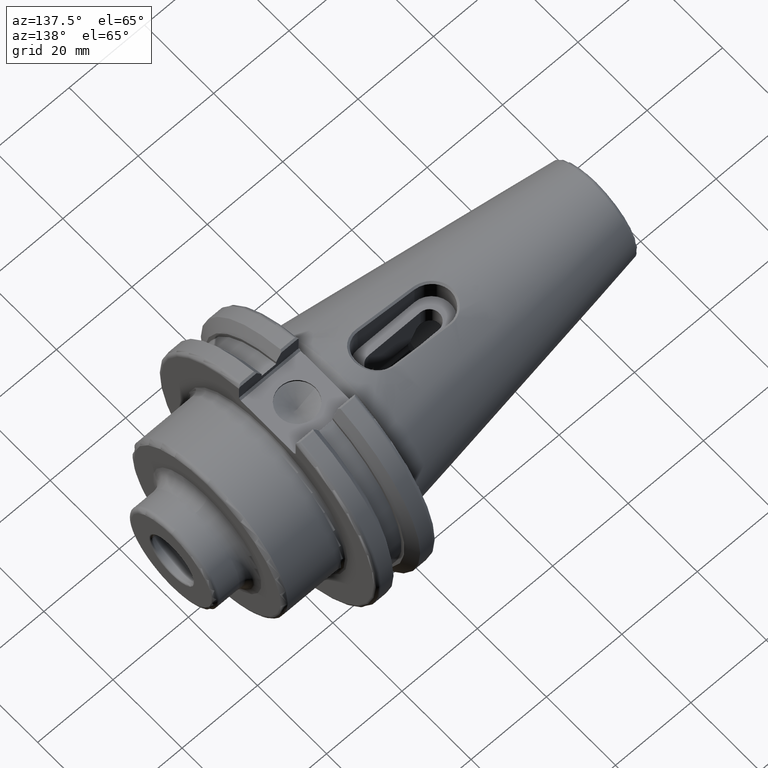
[diagram: clean part render]
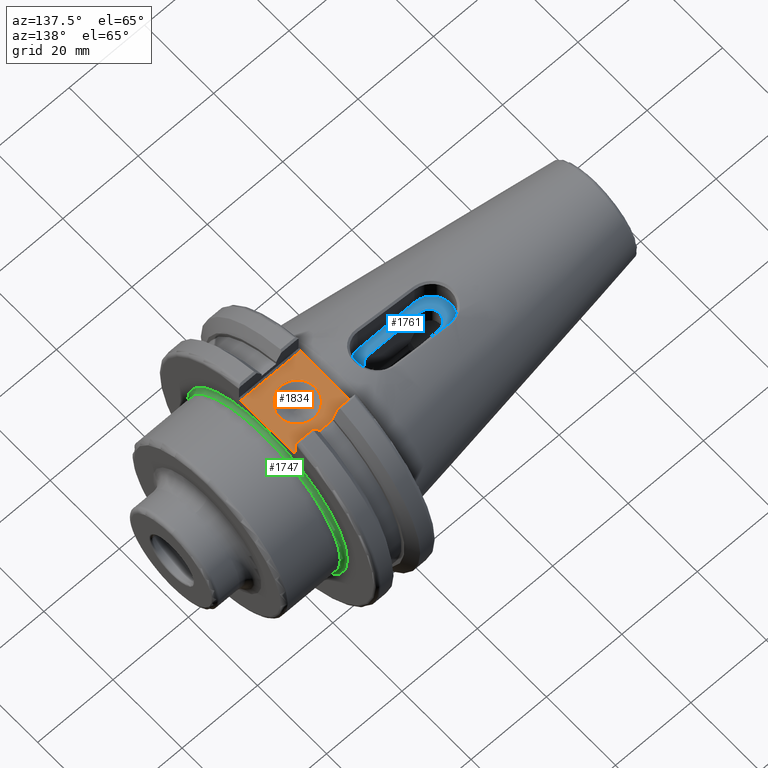
[diagram: same view with three faces highlighted in distinct colors, each labeled with its STEP entity id]
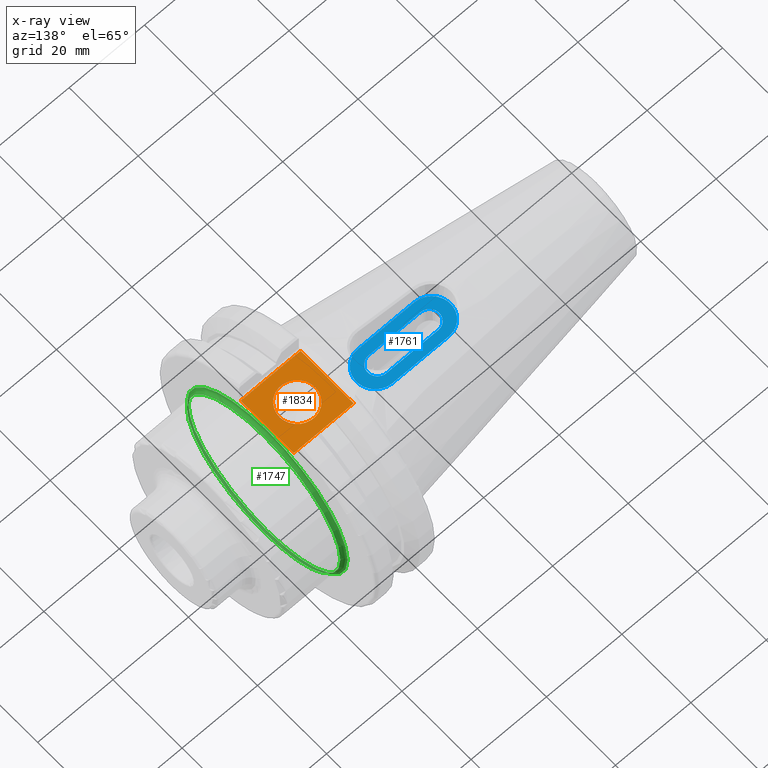
[diagram: x-ray of the same camera — body ghosted, the three highlighted faces saturated]
A machine part, auxiliary view with three faces highlighted in distinct colors.
The next image is the same camera in x-ray (body ghosted, the three faces saturated) — at least one of them is partly hidden behind the body in this view.
Their STEP definitions:

[orange] entity #1834 — the highlighted planar face has unit normal (0, 0, 1).
#193=LINE('',#3467,#318);
#214=LINE('',#3567,#339);
#237=LINE('',#3745,#362);
#239=LINE('',#3748,#364);
#318=VECTOR('',#2259,10.);
#339=VECTOR('',#2298,10.);
#362=VECTOR('',#2367,10.);
#364=VECTOR('',#2371,10.);
#398=FACE_BOUND('',#646,.T.);
#438=PLANE('',#2014);
#536=FACE_OUTER_BOUND('',#645,.T.);
#645=EDGE_LOOP('',(#1708,#1709,#1710,#1711));
#646=EDGE_LOOP('',(#1712));
#716=CIRCLE('',#1997,4.7625);
#828=VERTEX_POINT('',#3464);
#829=VERTEX_POINT('',#3466);
#855=VERTEX_POINT('',#3564);
#856=VERTEX_POINT('',#3566);
#902=VERTEX_POINT('',#3805);
#1059=EDGE_CURVE('',#828,#829,#193,.T.);
#1092=EDGE_CURVE('',#855,#856,#214,.T.);
#1141=EDGE_CURVE('',#856,#828,#237,.T.);
#1143=EDGE_CURVE('',#829,#855,#239,.T.);
#1165=EDGE_CURVE('',#902,#902,#716,.T.);
#1708=ORIENTED_EDGE('',*,*,#1141,.F.);
#1709=ORIENTED_EDGE('',*,*,#1092,.F.);
#1710=ORIENTED_EDGE('',*,*,#1143,.F.);
#1711=ORIENTED_EDGE('',*,*,#1059,.F.);
#1712=ORIENTED_EDGE('',*,*,#1165,.T.);
#1834=ADVANCED_FACE('',(#536,#398),#438,.T.);
#1997=AXIS2_PLACEMENT_3D('',#3806,#2414,#2415);
#2014=AXIS2_PLACEMENT_3D('',#3824,#2449,#2450);
#2259=DIRECTION('',(0.,1.,0.));
#2298=DIRECTION('',(0.,-1.,0.));
#2367=DIRECTION('',(-1.,1.31581988103722E-16,0.));
#2371=DIRECTION('',(1.,0.,0.));
#2414=DIRECTION('center_axis',(0.,0.,-1.));
#2415=DIRECTION('ref_axis',(1.,0.,0.));
#2449=DIRECTION('center_axis',(0.,0.,1.));
#2450=DIRECTION('ref_axis',(1.,0.,0.));
#3464=CARTESIAN_POINT('',(3.175,-7.68999999999999,25.));
#3466=CARTESIAN_POINT('',(3.175,7.69,25.));
#3467=CARTESIAN_POINT('',(3.175,15.875,25.));
#3564=CARTESIAN_POINT('',(19.05,7.69,25.));
#3566=CARTESIAN_POINT('',(19.05,-7.69,25.));
#3567=CARTESIAN_POINT('',(19.05,0.,25.));
#3745=CARTESIAN_POINT('',(9.44125,-7.69,25.));
#3748=CARTESIAN_POINT('',(17.87875,7.69,25.));
#3805=CARTESIAN_POINT('',(6.3645,-5.83238038093927E-16,25.));
#3806=CARTESIAN_POINT('Origin',(11.127,0.,25.));
#3824=CARTESIAN_POINT('Origin',(15.7075,0.,25.));

[blue] entity #1761 — the highlighted planar face has unit normal (0, -0, -1).
#141=LINE('',#2889,#266);
#145=LINE('',#2898,#270);
#147=LINE('',#2973,#272);
#148=LINE('',#2977,#273);
#266=VECTOR('',#2099,10.);
#270=VECTOR('',#2109,10.);
#272=VECTOR('',#2125,10.);
#273=VECTOR('',#2128,10.);
#394=FACE_BOUND('',#569,.T.);
#404=PLANE('',#1903);
#463=FACE_OUTER_BOUND('',#568,.T.);
#568=EDGE_LOOP('',(#1300,#1301,#1302,#1303));
#569=EDGE_LOOP('',(#1304,#1305,#1306,#1307));
#673=CIRCLE('',#1895,5.);
#677=CIRCLE('',#1902,5.);
#678=CIRCLE('',#1904,2.6);
#679=CIRCLE('',#1905,2.6);
#760=VERTEX_POINT('',#2886);
#761=VERTEX_POINT('',#2888);
#762=VERTEX_POINT('',#2892);
#763=VERTEX_POINT('',#2896);
#775=VERTEX_POINT('',#2971);
#776=VERTEX_POINT('',#2972);
#777=VERTEX_POINT('',#2974);
#778=VERTEX_POINT('',#2976);
#956=EDGE_CURVE('',#760,#761,#141,.T.);
#959=EDGE_CURVE('',#762,#760,#673,.T.);
#961=EDGE_CURVE('',#763,#762,#145,.T.);
#974=EDGE_CURVE('',#761,#763,#677,.T.);
#975=EDGE_CURVE('',#775,#776,#147,.T.);
#976=EDGE_CURVE('',#777,#775,#678,.T.);
#977=EDGE_CURVE('',#778,#777,#148,.T.);
#978=EDGE_CURVE('',#776,#778,#679,.T.);
#1300=ORIENTED_EDGE('',*,*,#974,.F.);
#1301=ORIENTED_EDGE('',*,*,#956,.F.);
#1302=ORIENTED_EDGE('',*,*,#959,.F.);
#1303=ORIENTED_EDGE('',*,*,#961,.F.);
#1304=ORIENTED_EDGE('',*,*,#975,.F.);
#1305=ORIENTED_EDGE('',*,*,#976,.F.);
#1306=ORIENTED_EDGE('',*,*,#977,.F.);
#1307=ORIENTED_EDGE('',*,*,#978,.F.);
#1761=ADVANCED_FACE('',(#463,#394),#404,.F.);
#1895=AXIS2_PLACEMENT_3D('',#2894,#2104,#2105);
#1902=AXIS2_PLACEMENT_3D('',#2969,#2121,#2122);
#1903=AXIS2_PLACEMENT_3D('',#2970,#2123,#2124);
#1904=AXIS2_PLACEMENT_3D('',#2975,#2126,#2127);
#1905=AXIS2_PLACEMENT_3D('',#2978,#2129,#2130);
#2099=DIRECTION('',(1.,-2.96059473233375E-16,3.62568286252504E-32));
#2104=DIRECTION('center_axis',(0.,-1.22464679914735E-16,-1.));
#2105=DIRECTION('ref_axis',(0.,-1.,1.22464679914735E-16));
#2109=DIRECTION('',(-1.,-4.44089209850063E-16,5.43852429378756E-32));
#2121=DIRECTION('center_axis',(0.,-1.22464679914735E-16,-1.));
#2122=DIRECTION('ref_axis',(0.,1.,-1.22464679914735E-16));
#2123=DIRECTION('center_axis',(0.,-1.22464679914735E-16,-1.));
#2124=DIRECTION('ref_axis',(1.,0.,0.));
#2125=DIRECTION('',(-1.,8.04509438134171E-17,-9.85239908294848E-33));
#2126=DIRECTION('center_axis',(0.,1.22464679914735E-16,1.));
#2127=DIRECTION('ref_axis',(8.54017711250121E-16,-1.,0.));
#2128=DIRECTION('',(1.,2.41352831440251E-16,-2.95571972488454E-32));
#2129=DIRECTION('center_axis',(0.,1.22464679914735E-16,1.));
#2130=DIRECTION('ref_axis',(0.,1.,0.));
#2886=CARTESIAN_POINT('',(-24.55,5.00000000000001,11.6344));
#2888=CARTESIAN_POINT('',(-9.55,5.,11.6344));
#2889=CARTESIAN_POINT('',(-24.55,5.00000000000001,11.6344));
#2892=CARTESIAN_POINT('',(-24.55,-5.,11.6344));
#2894=CARTESIAN_POINT('Origin',(-24.55,3.87619945159417E-15,11.6344));
#2896=CARTESIAN_POINT('',(-9.55,-5.,11.6344));
#2898=CARTESIAN_POINT('',(-9.55,-5.,11.6344));
#2969=CARTESIAN_POINT('Origin',(-9.55,2.59434076518572E-15,11.6344));
#2970=CARTESIAN_POINT('Origin',(-17.05,1.424803072E-15,11.6344));
#2971=CARTESIAN_POINT('',(-10.15,2.6,11.6344));
#2972=CARTESIAN_POINT('',(-23.95,2.6,11.6344));
#2973=CARTESIAN_POINT('',(-13.6,2.6,11.6344));
#2974=CARTESIAN_POINT('',(-10.15,-2.6,11.6344));
#2975=CARTESIAN_POINT('Origin',(-10.15,-1.37580997764397E-15,11.6344));
#2976=CARTESIAN_POINT('',(-23.95,-2.6,11.6344));
#2977=CARTESIAN_POINT('',(-20.5,-2.6,11.6344));
#2978=CARTESIAN_POINT('Origin',(-23.95,-1.98027758172778E-15,11.6344));

[green] entity #1747 — the highlighted toroidal blend (fillet) surface has major radius 23.225 mm and minor (blend) radius 1 mm.
#51=B_SPLINE_CURVE_WITH_KNOTS('',3,(#2517,#2518,#2519,#2520,#2521,#2522),
 .UNSPECIFIED.,.F.,.F.,(4,2,4),(1.71265323869135,2.05590760475557,2.21500771015416),
 .UNSPECIFIED.);
#52=B_SPLINE_CURVE_WITH_KNOTS('',3,(#2525,#2526,#2527,#2528,#2529,#2530),
 .UNSPECIFIED.,.F.,.F.,(4,2,4),(1.21029876722854,1.36939887262713,1.71265323869135),
 .UNSPECIFIED.);
#449=FACE_OUTER_BOUND('',#552,.T.);
#552=EDGE_LOOP('',(#1220,#1221,#1222,#1223,#1224,#1225,#1226));
#669=CIRCLE('',#1888,22.225);
#670=CIRCLE('',#1889,22.225);
#671=CIRCLE('',#1891,1.);
#672=CIRCLE('',#1892,23.225);
#739=VERTEX_POINT('',#2508);
#740=VERTEX_POINT('',#2510);
#741=VERTEX_POINT('',#2514);
#742=VERTEX_POINT('',#2516);
#743=VERTEX_POINT('',#2523);
#925=EDGE_CURVE('',#740,#739,#669,.T.);
#926=EDGE_CURVE('',#739,#740,#670,.T.);
#927=EDGE_CURVE('',#740,#741,#671,.T.);
#928=EDGE_CURVE('',#742,#741,#51,.F.);
#929=EDGE_CURVE('',#742,#743,#672,.T.);
#930=EDGE_CURVE('',#741,#743,#52,.F.);
#1220=ORIENTED_EDGE('',*,*,#926,.T.);
#1221=ORIENTED_EDGE('',*,*,#927,.T.);
#1222=ORIENTED_EDGE('',*,*,#928,.F.);
#1223=ORIENTED_EDGE('',*,*,#929,.T.);
#1224=ORIENTED_EDGE('',*,*,#930,.F.);
#1225=ORIENTED_EDGE('',*,*,#927,.F.);
#1226=ORIENTED_EDGE('',*,*,#925,.T.);
#1731=TOROIDAL_SURFACE('',#1890,23.225,1.);
#1747=ADVANCED_FACE('',(#449),#1731,.F.);
#1888=AXIS2_PLACEMENT_3D('',#2511,#2078,#2079);
#1889=AXIS2_PLACEMENT_3D('',#2512,#2080,#2081);
#1890=AXIS2_PLACEMENT_3D('',#2513,#2082,#2083);
#1891=AXIS2_PLACEMENT_3D('',#2515,#2084,#2085);
#1892=AXIS2_PLACEMENT_3D('',#2524,#2086,#2087);
#2078=DIRECTION('center_axis',(-1.,0.,0.));
#2079=DIRECTION('ref_axis',(0.,-1.,-1.22464679914735E-16));
#2080=DIRECTION('center_axis',(-1.,0.,0.));
#2081=DIRECTION('ref_axis',(0.,-1.,-1.22464679914735E-16));
#2082=DIRECTION('center_axis',(-1.,0.,0.));
#2083=DIRECTION('ref_axis',(0.,0.,1.));
#2084=DIRECTION('center_axis',(0.,-1.,1.22464679914735E-16));
#2085=DIRECTION('ref_axis',(0.,-1.22464679914735E-16,-1.));
#2086=DIRECTION('center_axis',(1.,0.,0.));
#2087=DIRECTION('ref_axis',(0.,-1.,-1.22464679914735E-16));
#2508=CARTESIAN_POINT('',(20.05,-22.225,-2.72177751110499E-15));
#2510=CARTESIAN_POINT('',(20.05,-2.72177751110499E-15,-22.225));
#2511=CARTESIAN_POINT('Origin',(20.05,0.,0.));
#2512=CARTESIAN_POINT('Origin',(20.05,0.,0.));
#2513=CARTESIAN_POINT('Origin',(20.05,0.,0.));
#2514=CARTESIAN_POINT('',(19.2693752502002,-1.31446194399744E-15,-22.6));
#2515=CARTESIAN_POINT('Origin',(20.05,-2.84424219101973E-15,-23.225));
#2516=CARTESIAN_POINT('',(19.05,5.35169365715191,-22.6));
#2517=CARTESIAN_POINT('Ctrl Pts',(19.2693752502002,1.38777878078145E-16,
-22.6));
#2518=CARTESIAN_POINT('Ctrl Pts',(19.2693752502002,1.14418122021406,-22.6));
#2519=CARTESIAN_POINT('Ctrl Pts',(19.1704705030536,2.51363176994057,-22.6));
#2520=CARTESIAN_POINT('Ctrl Pts',(19.076756191356,4.18552225512046,-22.6));
#2521=CARTESIAN_POINT('Ctrl Pts',(19.05,4.82135997248993,-22.6));
#2522=CARTESIAN_POINT('Ctrl Pts',(19.05,5.35169365715191,-22.6));
#2523=CARTESIAN_POINT('',(19.05,-5.35169365715191,-22.6));
#2524=CARTESIAN_POINT('Origin',(19.05,0.,0.));
#2525=CARTESIAN_POINT('Ctrl Pts',(19.05,-5.35169365715191,-22.6));
#2526=CARTESIAN_POINT('Ctrl Pts',(19.05,-4.82135997248993,-22.6));
#2527=CARTESIAN_POINT('Ctrl Pts',(19.076756191356,-4.18552225512046,-22.6));
#2528=CARTESIAN_POINT('Ctrl Pts',(19.1704705030536,-2.51363176994057,-22.6));
#2529=CARTESIAN_POINT('Ctrl Pts',(19.2693752502002,-1.14418122021406,-22.6));
#2530=CARTESIAN_POINT('Ctrl Pts',(19.2693752502002,-2.77555756156289E-16,
-22.6));